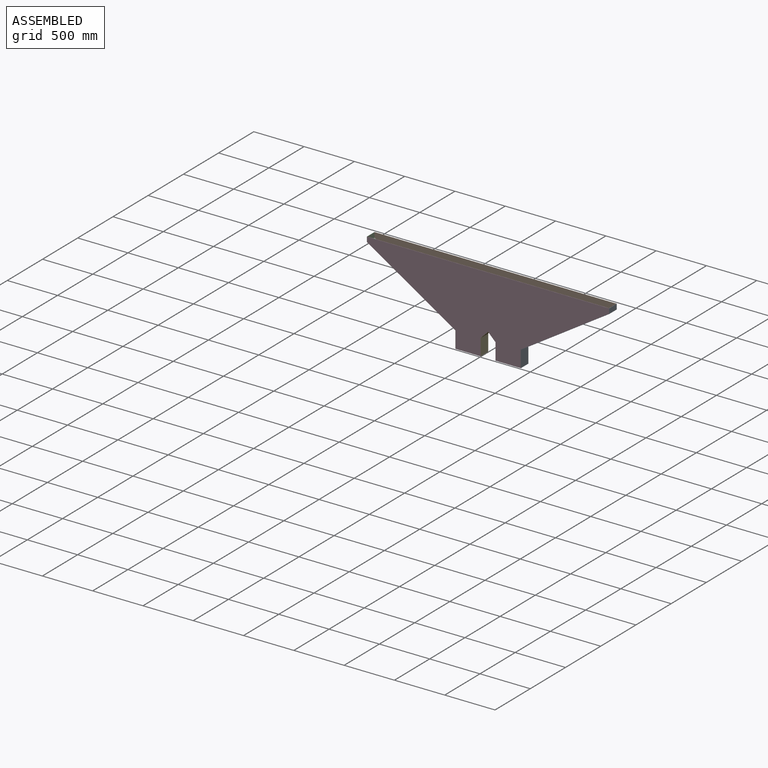
[diagram: assembled view]
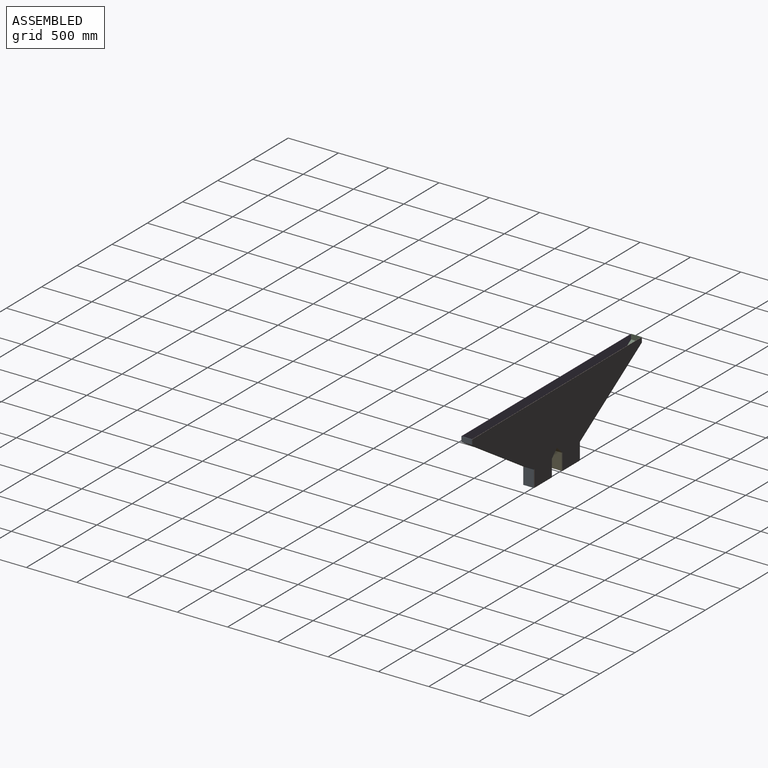
[diagram: assembled view, second angle]
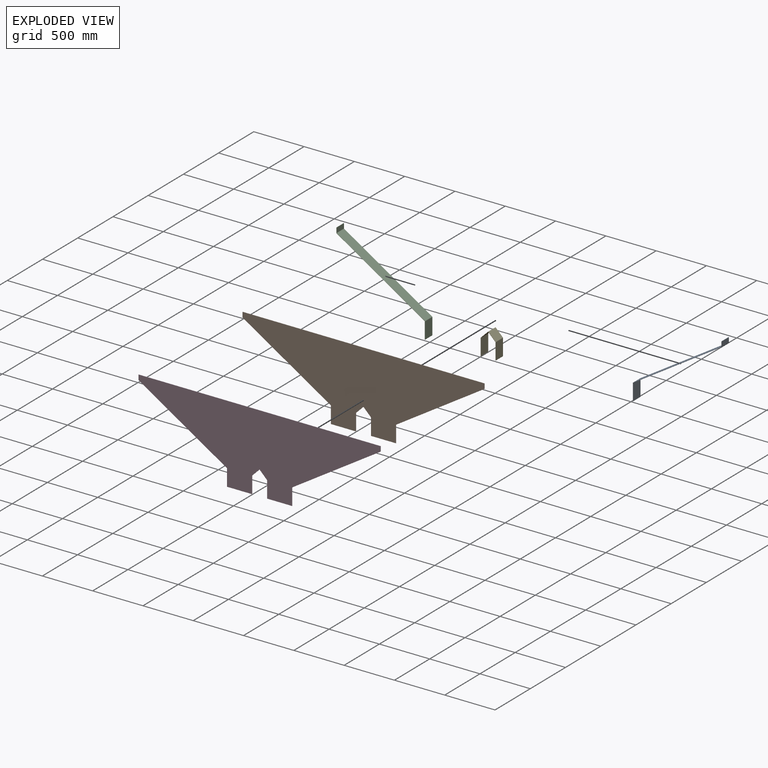
[diagram: exploded view]
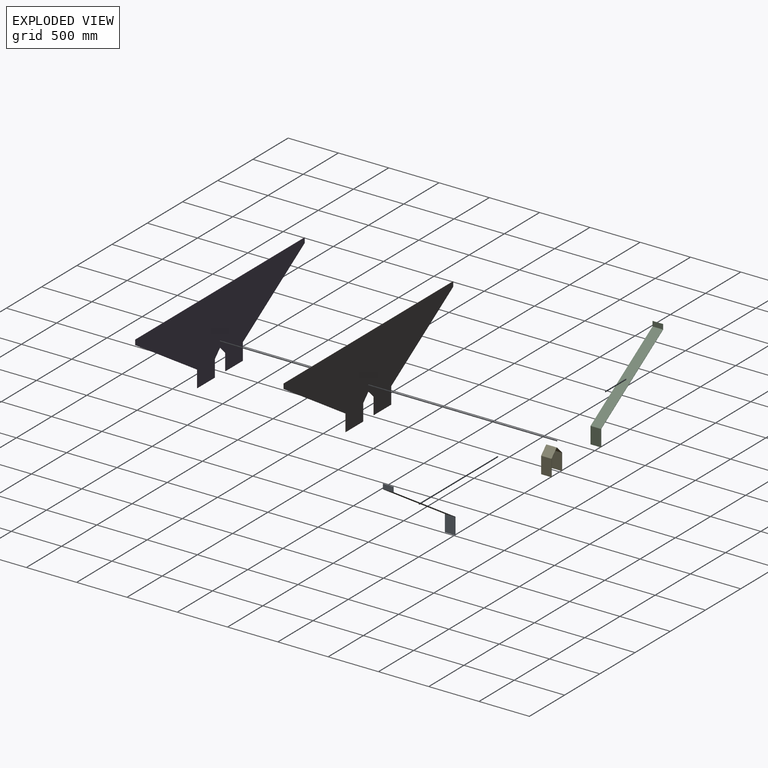
[diagram: exploded view, second angle]
ASSEMBLY  parts=5 mates=4
PART A: 22 faces, bbox 881.9x104.2x772.6 mm
  f0: plane 163.84x2.66mm, normal (0,1,0), area 435.3mm2, adj f2,f3,f4,f19
  f1: plane 163.84x2.66mm, normal (0,-1,0), area 435.3mm2, adj f2,f3,f4,f18
  f2: plane 104.22x2.66mm, normal (0,0,-1), area 276.9mm2, adj f0,f1,f3,f4
  f3: plane 163.84x104.22mm, normal (1,0,0), area 17075mm2, adj f0,f1,f2,f20
  f4: plane 163.84x104.22mm, normal (-1,0,0), area 17075mm2, adj f0,f1,f2,f21
  f5: plane 877.26x556.79mm, normal (0,1,0), area 2754.2mm2, adj f7,f8,f15,f19
  f6: plane 877.26x556.79mm, normal (0,-1,0), area 2754.2mm2, adj f7,f8,f14,f18
  f7: plane 875.84x554.54mm, normal (0.53,0,0.84), area 108034.4mm2, adj f5,f6,f17,f20
  f8: plane 875.84x554.54mm, normal (-0.53,0,-0.84), area 108034.4mm2, adj f5,f6,f16,f21
  f9: plane 48.08x2.66mm, normal (0,1,0), area 127.7mm2, adj f10,f12,f13,f15
  f10: plane 104.22x2.66mm, normal (0,0,1), area 276.9mm2, adj f9,f11,f12,f13
  f11: plane 48.08x2.66mm, normal (0,-1,0), area 127.7mm2, adj f10,f12,f13,f14
  f12: plane 104.22x48.08mm, normal (1,0,0), area 5010.6mm2, adj f9,f10,f11,f17
  f13: plane 104.22x48.08mm, normal (-1,0,0), area 5010.6mm2, adj f9,f10,f11,f16
  f14: plane 4.18x3.72mm, normal (0,-1,0), area 9.7mm2, adj f6,f11,f16,f17
  f15: plane 4.18x3.72mm, normal (0,1,0), area 9.7mm2, adj f5,f9,f16,f17
  f16: cylinder r=4.94mm len=104.22mm, axis (0,-1,0), area 518.4mm2, adj f8,f13,f14,f15
  f17: cylinder r=2.29mm len=104.22mm, axis (0,-1,0), area 239.8mm2, adj f7,f12,f14,f15
  f18: plane 4.18x3.72mm, normal (0,-1,0), area 9.7mm2, adj f1,f6,f20,f21
  f19: plane 4.18x3.72mm, normal (0,1,0), area 9.7mm2, adj f0,f5,f20,f21
  f20: cylinder r=4.94mm len=104.22mm, axis (0,-1,0), area 518.4mm2, adj f3,f7,f18,f19
  f21: cylinder r=2.29mm len=104.22mm, axis (0,-1,0), area 239.8mm2, adj f4,f8,f18,f19
PART B: 15 faces, bbox 2405.4x2.7x772.6 mm
  f0: plane 166.56x2.66mm, normal (-1,0,0), area 442.5mm2, adj f1,f12,f13,f14
  f1: plane 248.69x2.66mm, normal (0,0,-1), area 660.7mm2, adj f0,f2,f13,f14
  f2: plane 166.2x2.66mm, normal (1,0,0), area 441.6mm2, adj f1,f3,f13,f14
  f3: plane 74.8x74.8mm, normal (0.71,0,-0.71), area 281.1mm2, adj f2,f4,f13,f14
  f4: plane 74.8x74.8mm, normal (-0.71,0,-0.71), area 281.1mm2, adj f3,f5,f13,f14
  f5: plane 166.2x2.66mm, normal (-1,0,0), area 441.6mm2, adj f4,f6,f13,f14
  f6: plane 248.69x2.66mm, normal (0,0,-1), area 660.7mm2, adj f5,f7,f13,f14
  f7: plane 166.56x2.66mm, normal (1,0,0), area 442.5mm2, adj f6,f8,f13,f14
  f8: plane 879.2x556.67mm, normal (0.53,0,-0.84), area 2764.7mm2, adj f7,f9,f13,f14
  f9: plane 49.34x2.66mm, normal (1,0,0), area 131.1mm2, adj f8,f10,f13,f14
  f10: plane 2405.39x2.66mm, normal (0,0,1), area 6390.7mm2, adj f9,f11,f13,f14
  f11: plane 49.34x2.66mm, normal (-1,0,0), area 131.1mm2, adj f10,f12,f13,f14
  f12: plane 879.2x556.67mm, normal (-0.53,0,-0.84), area 2764.7mm2, adj f0,f11,f13,f14
  f13: plane 2405.39x772.57mm, normal (0,-1,0), area 1045560.7mm2, adj f0,f1,f2,f3,f4,f5,f6,f7
  f14: plane 2405.39x772.57mm, normal (0,1,0), area 1045560.7mm2, adj f0,f1,f2,f3,f4,f5,f6,f7
PART C: same geometry as A
PART D: same geometry as B
PART E: 30 faces, bbox 149.6x104.2x239 mm
  f0: plane 164.15x2.66mm, normal (0,1,0), area 436.1mm2, adj f2,f3,f4,f27
  f1: plane 164.15x2.66mm, normal (0,-1,0), area 436.1mm2, adj f2,f3,f4,f26
  f2: plane 104.22x2.66mm, normal (0,0,-1), area 276.9mm2, adj f0,f1,f3,f4
  f3: plane 164.15x104.22mm, normal (1,0,0), area 17107.4mm2, adj f0,f1,f2,f29
  f4: plane 164.15x104.22mm, normal (-1,0,0), area 17107.4mm2, adj f0,f1,f2,f28
  f5: plane 71.74x71.74mm, normal (0,1,0), area 262.5mm2, adj f7,f8,f23,f27
  f6: plane 71.74x71.74mm, normal (0,-1,0), area 262.5mm2, adj f7,f8,f22,f26
  f7: plane 104.22x69.86mm, normal (0.71,0,-0.71), area 10296.4mm2, adj f5,f6,f25,f29
  f8: plane 104.22x69.86mm, normal (-0.71,0,0.71), area 10296.4mm2, adj f5,f6,f24,f28
  f9: plane 71.74x71.74mm, normal (0,1,0), area 262.5mm2, adj f11,f12,f19,f23
  f10: plane 71.74x71.74mm, normal (0,-1,0), area 262.5mm2, adj f11,f12,f18,f22
  f11: plane 104.22x69.86mm, normal (-0.71,0,-0.71), area 10296.4mm2, adj f9,f10,f21,f25
  f12: plane 104.22x69.86mm, normal (0.71,0,0.71), area 10296.4mm2, adj f9,f10,f20,f24
  f13: plane 164.15x2.66mm, normal (0,1,0), area 436.1mm2, adj f14,f16,f17,f19
  f14: plane 104.22x2.66mm, normal (0,0,-1), area 276.9mm2, adj f13,f15,f16,f17
  f15: plane 164.15x2.66mm, normal (0,-1,0), area 436.1mm2, adj f14,f16,f17,f18
  f16: plane 164.15x104.22mm, normal (-1,0,0), area 17107.4mm2, adj f13,f14,f15,f21
  f17: plane 164.15x104.22mm, normal (1,0,0), area 17107.4mm2, adj f13,f14,f15,f20
  f18: plane 3.5x3.33mm, normal (0,-1,0), area 7.5mm2, adj f10,f15,f20,f21
  f19: plane 3.5x3.33mm, normal (0,1,0), area 7.5mm2, adj f9,f13,f20,f21
  f20: cylinder r=4.94mm len=104.22mm, axis (0,-1,0), area 404.6mm2, adj f12,f17,f18,f19
  f21: cylinder r=2.29mm len=104.22mm, axis (0,-1,0), area 187.1mm2, adj f11,f16,f18,f19
  f22: plane 6.99x3.33mm, normal (0,-1,0), area 15.1mm2, adj f6,f10,f24,f25
  f23: plane 6.99x3.33mm, normal (0,1,0), area 15.1mm2, adj f5,f9,f24,f25
  f24: cylinder r=4.94mm len=104.22mm, axis (0,-1,0), area 809.2mm2, adj f8,f12,f22,f23
  f25: cylinder r=2.29mm len=104.22mm, axis (0,-1,0), area 374.2mm2, adj f7,f11,f22,f23
  f26: plane 3.5x3.33mm, normal (0,-1,0), area 7.5mm2, adj f1,f6,f28,f29
  f27: plane 3.5x3.33mm, normal (0,1,0), area 7.5mm2, adj f0,f5,f28,f29
  f28: cylinder r=4.94mm len=104.22mm, axis (0,-1,0), area 404.6mm2, adj f4,f8,f26,f27
  f29: cylinder r=2.29mm len=104.22mm, axis (0,-1,0), area 187.1mm2, adj f3,f7,f26,f27
PLACE A rot(axis=(0,0,1),180deg) t=(-519.97,1.84,253.7)mm
PLACE B t=(-247.91,1.83,253.7)mm fixed
PLACE C t=(-247.91,1.83,253.7)mm
PLACE D t=(-247.91,-105.04,253.7)mm
PLACE E rot(axis=(0,0,1),180deg) t=(-519.97,1.84,253.7)mm
MATE fastened E.f1 <-> B.f13  axis (0,1,0) through (-309.14,53.95,29.13)mm
MATE fastened C.f3 <-> B.f0  axis (1,0,0) through (-707.43,53.95,29.13)mm
MATE fastened A.f3 <-> B.f7  axis (-1,0,0) through (-60.45,53.95,29.13)mm
MATE fastened A.f0 <-> D.f14  axis (0,-1,0) through (-60.45,-50.27,29.13)mm
